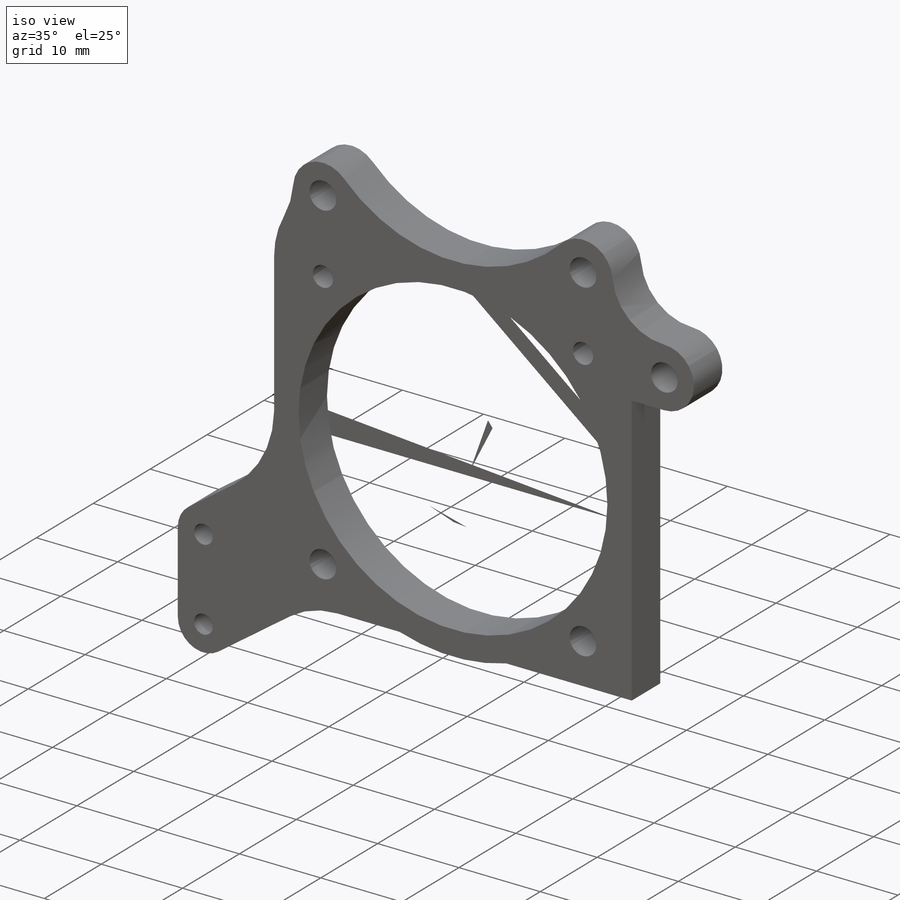
[diagram: iso view]
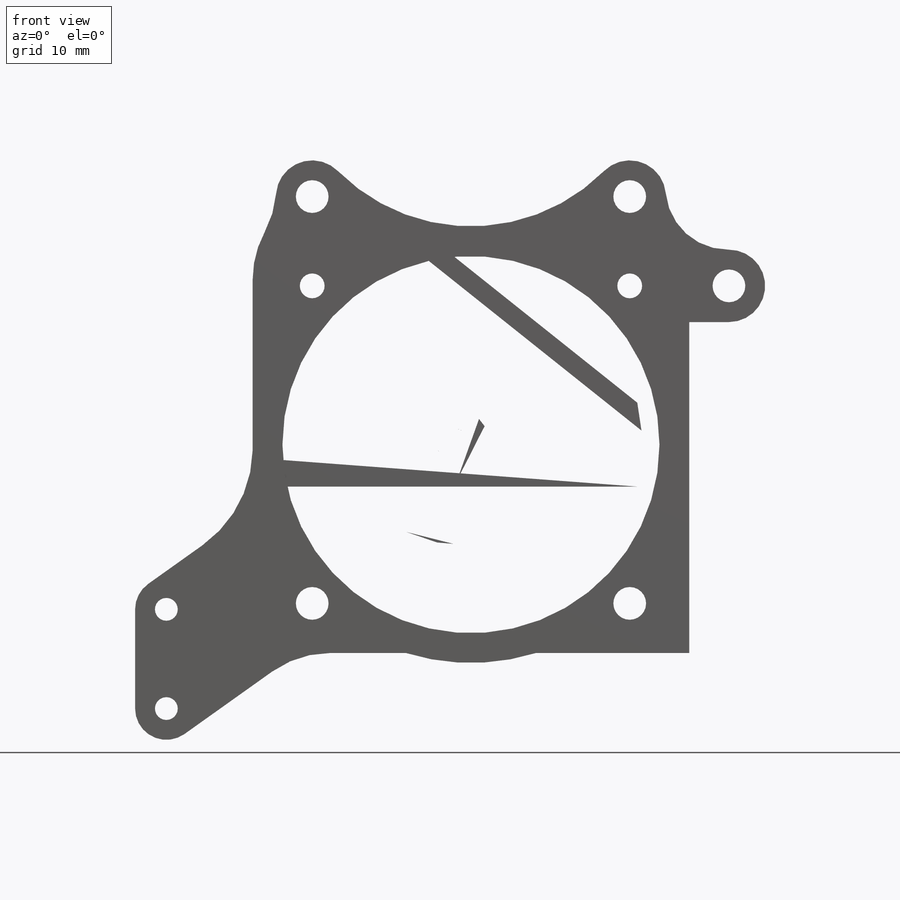
[diagram: front view]
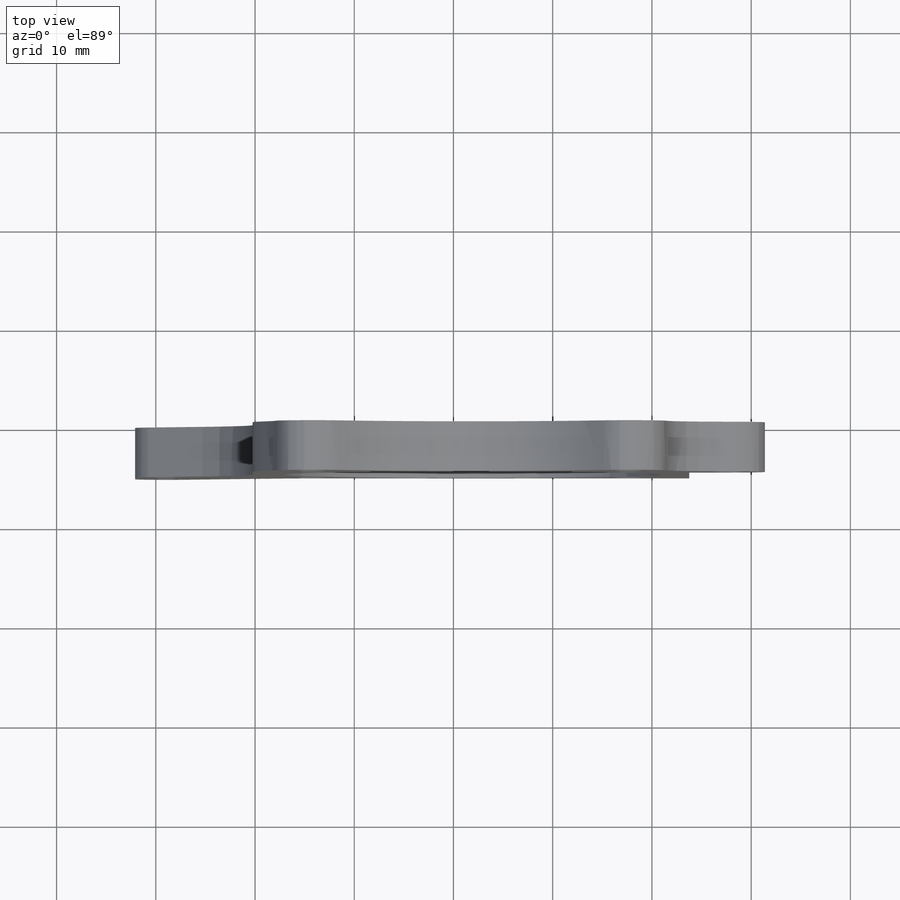
[diagram: top view]
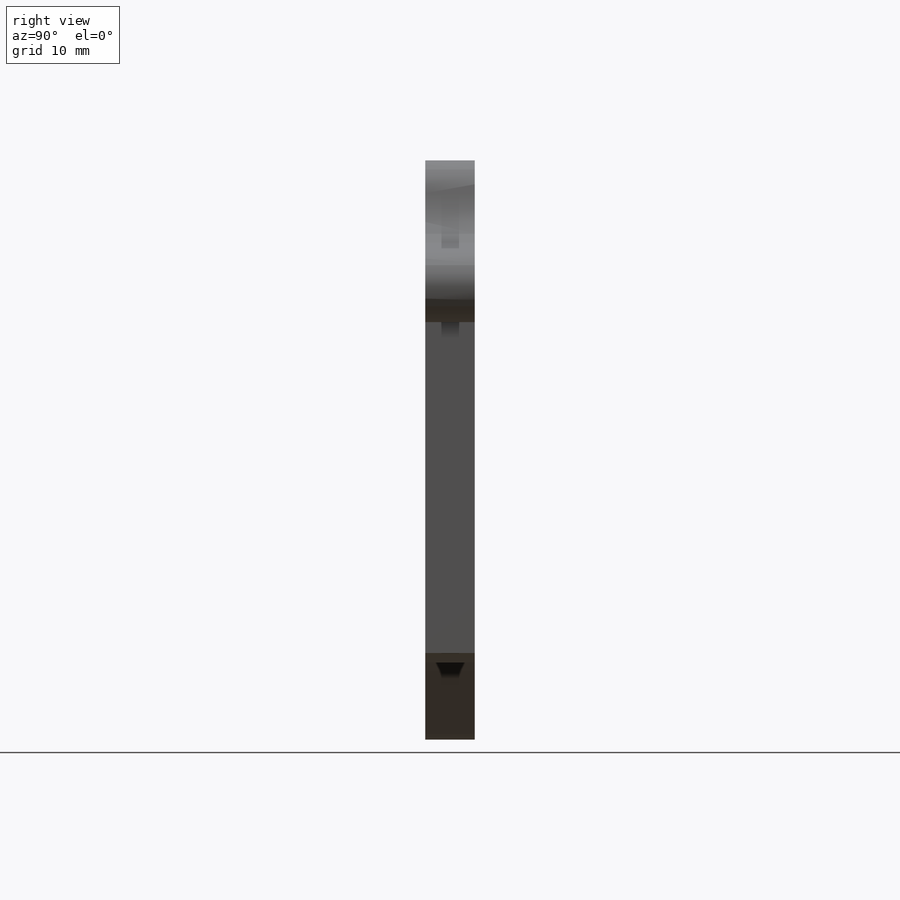
[diagram: right view]
SOLIDWORKS PART (.sldprt)
format: sldprt  version: not decoded by parser v0  size: 576,512 bytes
history: native  units: mm
features: sketch x11, cut_extrude x7, extrude x4, fillet x4, material x1, plane x1, chamfer x1 (+13 scaffold rows collapsed)
feature tree (42):
  scaffold x13  (default folders/planes/origin — collapsed)
  material  "Custom Plastic"
  sketch  "Sketch1"  dims[c1.D1=3.3mm c1.D2=32.0mm c1.D3=38.0mm c1.D8=38.0mm c1.D9=~2.910729mm c1.D7=3.2mm c1.D12=2.5mm c1.D13=2.5mm c2.D2=~56.173561mm c2.D4=42.0mm c2.D5=16.0mm c2.D6=2.0mm c2.D7=40.0mm c2.D8=3.0mm c2.D9=3.0mm c3.D7=2.0mm c3.D6=22.0mm c3.D9=42.0mm c3.D10=4.0mm c3.D11=4.0mm]
  extrude  "Boss-Extrude1"  Depth=17mm
  sketch  "Sketch2"  dims[c1.D1=1.0mm c1.D2=5.0mm c2.D1=1.5mm c2.D2=1.5mm c2.D3=3.0mm c2.D4=38.0mm c2.D5=3.0mm c2.D6=1.5mm c3.D2=1.5mm c3.D7=~12.612575mm c3.D1=1.5mm]
  cut_extrude  "Cut-Extrude1"  Depth=12mm
  plane  "Plane1"  Offset=2mm
  sketch  "Sketch3"  dims[c1.D4=6.0mm c1.D1=10.0mm c1.D2=31.0mm c1.D3=7.0mm c1.D5=22.0mm c2.D1=1.5mm c2.D2=1.0mm]
  cut_extrude  "Cut-Extrude3"  Depth=6mm
  sketch  "Sketch8"  dims[D2=9.0mm D3=8.0mm D1=18.0mm]
  cut_extrude  "Cut-Extrude5"  Depth=2mm
  fillet  "Fillet1"  Radius=10mm
  sketch  "Sketch9"  dims[D1=40.0mm D2=0.5mm]
  cut_extrude  "Cut-Extrude6"  Depth=2mm
  fillet  "Fillet2"  Radius=2mm
  chamfer  "Chamfer1"  Distance=0.3mm Angle=45deg
  sketch  "Sketch11"  dims[D1=1.2mm D2=14.6mm]
  extrude  "Boss-Extrude2"  [1 undecoded]
  sketch  "Sketch12"
  cut_extrude  "Cut-Extrude7"  [1 undecoded]
  sketch  "Sketch13"
  cut_extrude  "Cut-Extrude8"  [1 undecoded]
  sketch  "Sketch14"
  cut_extrude  "Cut-Extrude9"  Depth=10mm
  sketch  "Sketch15"  dims[D1=3.0mm]
  extrude  "Boss-Extrude3"  [1 undecoded]
  fillet  "Fillet4"  Radius=10mm
  fillet  "Fillet5"  Radius=10mm
  sketch  "Sketch16"  dims[c1.D1=10.0mm c1.D2=~10.882271mm c2.D2=~144.547758deg c3.D2=10.0mm c4.D2=~125.452242deg]
  extrude  "Boss-Extrude4"  [1 undecoded]
decode coverage: 19 of 27 modeling features carry decoded parameters
note: ~ marks probable driven/reference dimensions
note: 5 parameter values undecoded
summary: no parameter record found for 5 features
note: suppression state not decoded; provenance and decode notes live in map.json
